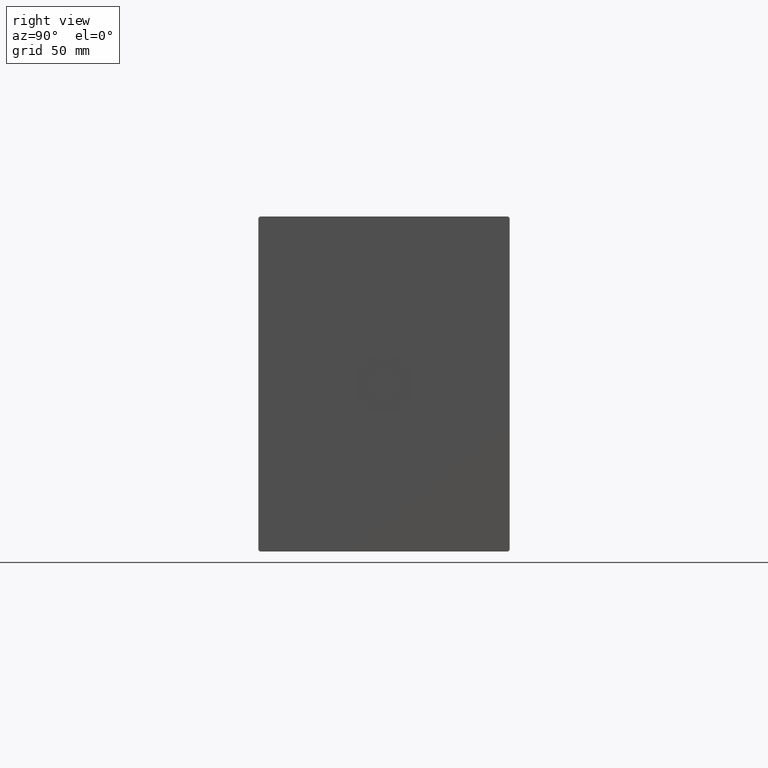
[diagram: clean part render]
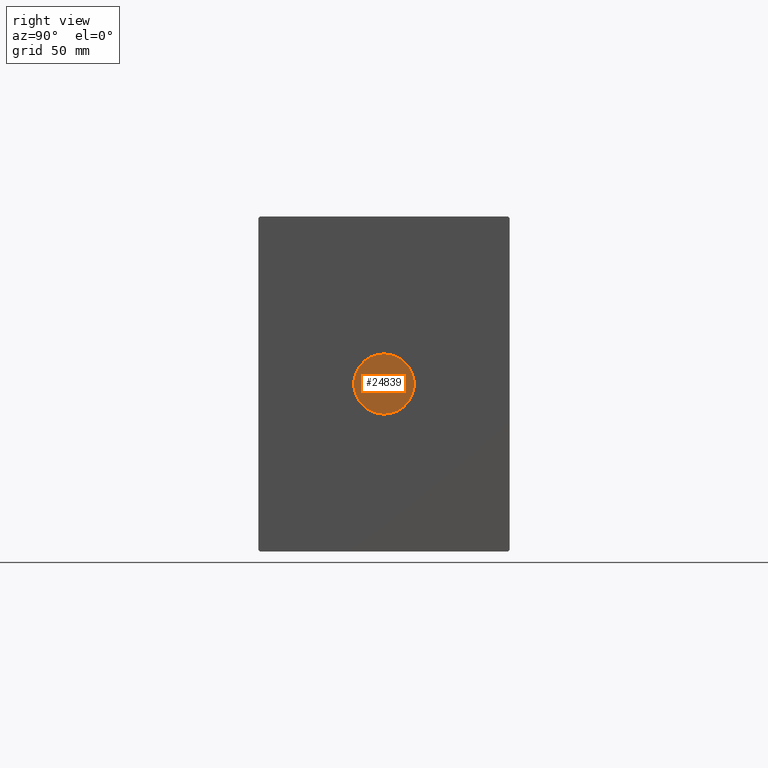
[diagram: same view with one face highlighted and labeled with its STEP entity id]
A machine part, right view. The second image highlights one B-rep face of the part: STEP entity #24839.
In plain terms, the highlighted planar face has unit normal (1, 0, 0).
Its self-contained STEP definition (entity closure, byte-faithful):
#200 = DIRECTION ( 'NONE',  ( 1.000000000000000000, 0.000000000000000000, 0.000000000000000000 ) ) ;
#409 = FACE_OUTER_BOUND ( 'NONE', #31390, .T. ) ;
#3258 = DIRECTION ( 'NONE',  ( 0.000000000000000000, 0.000000000000000000, -1.000000000000000000 ) ) ;
#3713 = DIRECTION ( 'NONE',  ( 1.000000000000000000, 0.000000000000000000, 0.000000000000000000 ) ) ;
#6552 = AXIS2_PLACEMENT_3D ( 'NONE', #37194, #26711, #3258 ) ;
#11439 = CARTESIAN_POINT ( 'NONE',  ( 357.8000000000000114, 0.000000000000000000, -18.00000000000000000 ) ) ;
#12277 = EDGE_CURVE ( 'NONE', #13666, #31974, #29719, .T. ) ;
#13212 = PLANE ( 'NONE',  #36663 ) ;
#13666 = VERTEX_POINT ( 'NONE', #11439 ) ;
#24839 = ADVANCED_FACE ( 'NONE', ( #409 ), #13212, .T. ) ;
#25143 = AXIS2_PLACEMENT_3D ( 'NONE', #30143, #3713, #29716 ) ;
#26646 = CARTESIAN_POINT ( 'NONE',  ( 357.8000000000000114, 2.204364238465235428E-15, 18.00000000000000000 ) ) ;
#26711 = DIRECTION ( 'NONE',  ( 1.000000000000000000, 0.000000000000000000, 0.000000000000000000 ) ) ;
#26879 = EDGE_CURVE ( 'NONE', #31974, #13666, #30608, .T. ) ;
#29716 = DIRECTION ( 'NONE',  ( 0.000000000000000000, 0.000000000000000000, -1.000000000000000000 ) ) ;
#29719 = CIRCLE ( 'NONE', #6552, 18.00000000000000000 ) ;
#30143 = CARTESIAN_POINT ( 'NONE',  ( 357.8000000000000114, 0.000000000000000000, 0.000000000000000000 ) ) ;
#30608 = CIRCLE ( 'NONE', #25143, 18.00000000000000000 ) ;
#31390 = EDGE_LOOP ( 'NONE', ( #31516, #38326 ) ) ;
#31516 = ORIENTED_EDGE ( 'NONE', *, *, #12277, .T. ) ;
#31974 = VERTEX_POINT ( 'NONE', #26646 ) ;
#33229 = DIRECTION ( 'NONE',  ( 0.000000000000000000, 0.000000000000000000, -1.000000000000000000 ) ) ;
#36663 = AXIS2_PLACEMENT_3D ( 'NONE', #39818, #200, #33229 ) ;
#37194 = CARTESIAN_POINT ( 'NONE',  ( 357.8000000000000114, 0.000000000000000000, 0.000000000000000000 ) ) ;
#38326 = ORIENTED_EDGE ( 'NONE', *, *, #26879, .T. ) ;
#39818 = CARTESIAN_POINT ( 'NONE',  ( 357.8000000000000114, 0.000000000000000000, 0.000000000000000000 ) ) ;